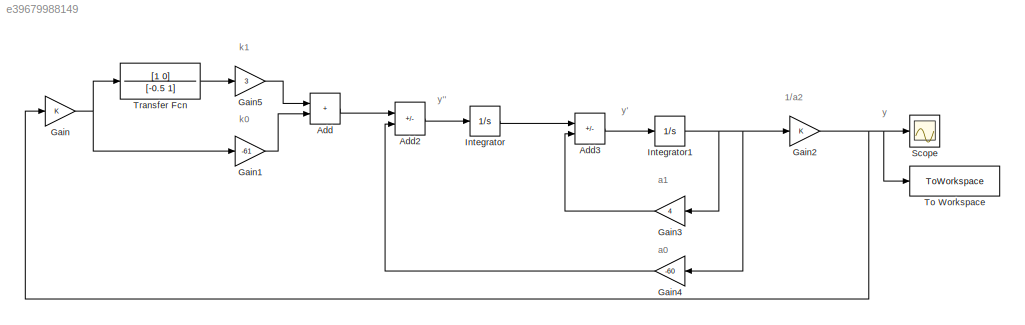
MODEL slx_e39679988149
KIND model
CONFIG AbsTol = auto
CONFIG EnableMultiTasking = off
CONFIG FixedStep = 0.01
CONFIG MaxStep = auto
CONFIG MinStep = auto
CONFIG RelTol = 1e-3
CONFIG SampleTimeConstraint = Unconstrained
CONFIG SolverName = VariableStepAuto
CONFIG StartTime = 0.0
CONFIG StopTime = 10
BLOCK [Sum] Add
  IconShape = rectangular
BLOCK [Sum] Add2
  IconShape = rectangular
  Inputs = +-
BLOCK [Sum] Add3
  IconShape = rectangular
  Inputs = +-
BLOCK [Gain] Gain
BLOCK [Gain] Gain1
  Gain = -61
BLOCK [Gain] Gain2
BLOCK [Gain] Gain3
  Gain = 4
  NameLocation = top
BLOCK [Gain] Gain4
  Gain = -60
  NameLocation = top
BLOCK [Gain] Gain5
  Gain = 3
BLOCK [Integrator] Integrator
  InitialCondition = 5
BLOCK [Integrator] Integrator1
  InitialCondition = 5
BLOCK [Scope] Scope
  Floating = off
  NumInputPorts = 1
  ScopeSpecificationString = Simulink.scopes.TimeScopeBlockCfg('CurrentConfiguration', extmgr.ConfigurationSet(extmgr.Configuration('Core','General UI',true),extmgr.Configuration('Core','Source UI',true),extmgr.Configuration('Sources','WiredSimulink',true),extmgr.Configuration('Visuals','Time Domain',true,'SerializedDisplays',{struct('MinYLimReal','-41300.27354','MaxYLimReal','4594.47484','YLabelReal','','MinYLimMag','   0.00...<+1382ch>
BLOCK [ToWorkspace] To Workspace
  FixptAsFi = on
  MaxDataPoints = inf
  SampleTime = -1
  SaveFormat = Timeseries
  VariableName = simout
BLOCK [TransferFcn] Transfer Fcn
  Denominator = [-0.5 1]
  Numerator = [1 0]
ANNOTATION (root): 1/a2
ANNOTATION (root): a0
ANNOTATION (root): a1
ANNOTATION (root): k0
ANNOTATION (root): k1
ANNOTATION (root): y
ANNOTATION (root): y'
ANNOTATION (root): y''
LINE Add2:1 -> Integrator:1
LINE Add3:1 -> Integrator1:1
LINE Add:1 -> Add2:1
LINE Gain1:1 -> Add:2
NET Gain2:1 -> Gain:1, Scope:1, To Workspace:1
LINE Gain3:1 -> Add3:2
LINE Gain4:1 -> Add2:2
LINE Gain5:1 -> Add:1
NET Gain:1 -> Gain1:1, Transfer Fcn:1
NET Integrator1:1 -> Gain2:1, Gain3:1, Gain4:1
LINE Integrator:1 -> Add3:1
LINE Transfer Fcn:1 -> Gain5:1
note: NET lines group one-source signal fan-out (src -> all destinations, sorted); 1:1 wires keep LINE
